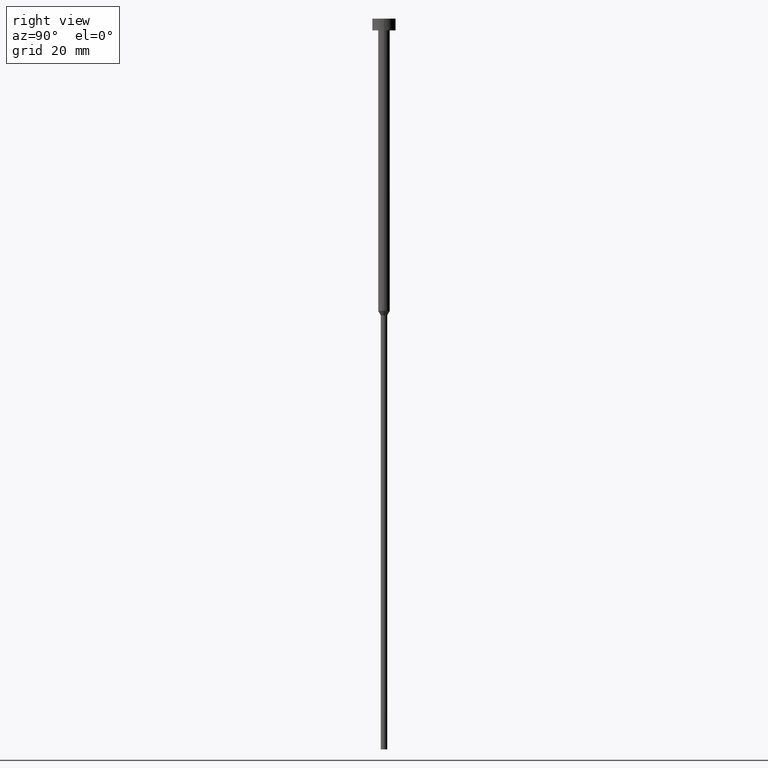
[diagram: clean part render]
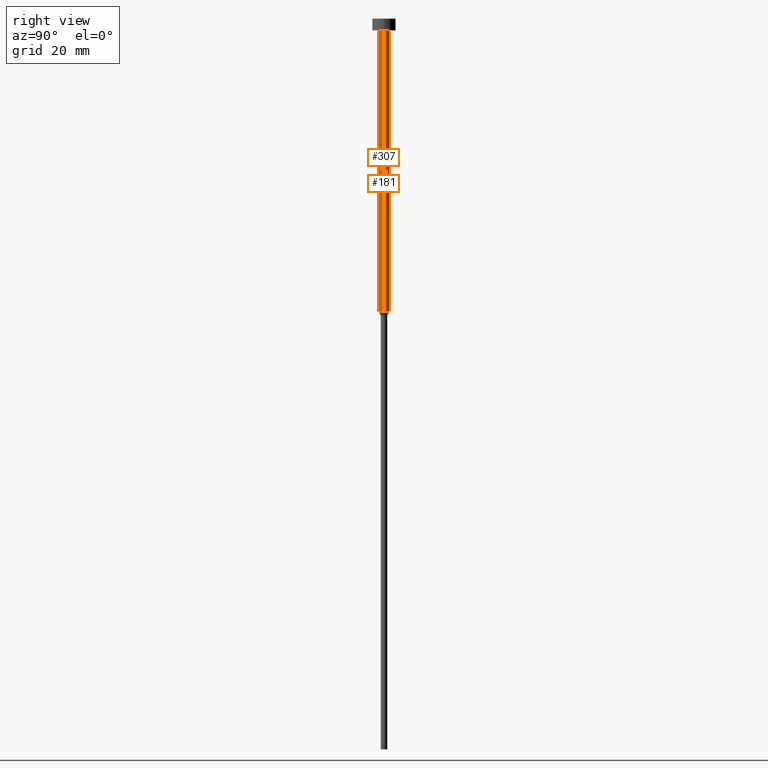
[diagram: same view with one multi-face feature highlighted, each face labeled with its STEP entity id]
A machine part, right view. The highlighted faces form ONE feature: a constant-radius fillet chain: 2 tangent blend faces with common blend radius 1 mm. The faces share edges in the B-rep.
Their STEP definitions:
[1] entity #307 (Cylinder):
#25 = DIRECTION ( 'NONE',  ( 1.000000000000000000, 0.000000000000000000, 0.000000000000000000 ) ) ;
#26 = VERTEX_POINT ( 'NONE', #200 ) ;
#27 = CARTESIAN_POINT ( 'NONE',  ( 0.000000000000000000, 0.000000000000000000, 0.000000000000000000 ) ) ;
#30 = DIRECTION ( 'NONE',  ( -0.000000000000000000, -0.000000000000000000, 1.000000000000000000 ) ) ;
#55 = AXIS2_PLACEMENT_3D ( 'NONE', #27, #244, #218 ) ;
#56 = FACE_OUTER_BOUND ( 'NONE', #223, .T. ) ;
#67 = AXIS2_PLACEMENT_3D ( 'NONE', #188, #327, #302 ) ;
#76 = ORIENTED_EDGE ( 'NONE', *, *, #282, .T. ) ;
#85 = DIRECTION ( 'NONE',  ( -0.000000000000000000, -0.000000000000000000, 1.000000000000000000 ) ) ;
#88 = ORIENTED_EDGE ( 'NONE', *, *, #235, .F. ) ;
#115 = CYLINDRICAL_SURFACE ( 'NONE', #55, 1.000000000000003331 ) ;
#116 = AXIS2_PLACEMENT_3D ( 'NONE', #297, #85, #25 ) ;
#149 = CARTESIAN_POINT ( 'NONE',  ( 1.000000000000003331, 0.000000000000000000, 0.000000000000000000 ) ) ;
#166 = CARTESIAN_POINT ( 'NONE',  ( -1.000000000000003109, 1.224646799147356905E-16, -50.00000000000000000 ) ) ;
#167 = CIRCLE ( 'NONE', #67, 1.000000000000003109 ) ;
#170 = VECTOR ( 'NONE', #30, 1000.000000000000000 ) ;
#188 = CARTESIAN_POINT ( 'NONE',  ( 0.000000000000000000, 0.000000000000000000, -50.00000000000000000 ) ) ;
#190 = VECTOR ( 'NONE', #249, 1000.000000000000000 ) ;
#191 = ORIENTED_EDGE ( 'NONE', *, *, #266, .F. ) ;
#196 = CIRCLE ( 'NONE', #116, 1.000000000000003553 ) ;
#197 = ORIENTED_EDGE ( 'NONE', *, *, #226, .T. ) ;
#198 = CARTESIAN_POINT ( 'NONE',  ( -1.000000000000003553, 1.224646799147357398E-16, -2.000000000000000444 ) ) ;
#200 = CARTESIAN_POINT ( 'NONE',  ( 1.000000000000003553, 0.000000000000000000, -2.000000000000000444 ) ) ;
#218 = DIRECTION ( 'NONE',  ( 1.000000000000000000, 0.000000000000000000, 0.000000000000000000 ) ) ;
#223 = EDGE_LOOP ( 'NONE', ( #88, #197, #76, #191 ) ) ;
#226 = EDGE_CURVE ( 'NONE', #252, #227, #167, .T. ) ;
#227 = VERTEX_POINT ( 'NONE', #299 ) ;
#235 = EDGE_CURVE ( 'NONE', #252, #336, #246, .T. ) ;
#244 = DIRECTION ( 'NONE',  ( -0.000000000000000000, -0.000000000000000000, 1.000000000000000000 ) ) ;
#246 = LINE ( 'NONE', #323, #170 ) ;
#249 = DIRECTION ( 'NONE',  ( -0.000000000000000000, -0.000000000000000000, 1.000000000000000000 ) ) ;
#252 = VERTEX_POINT ( 'NONE', #166 ) ;
#266 = EDGE_CURVE ( 'NONE', #336, #26, #196, .T. ) ;
#270 = LINE ( 'NONE', #149, #190 ) ;
#282 = EDGE_CURVE ( 'NONE', #227, #26, #270, .T. ) ;
#297 = CARTESIAN_POINT ( 'NONE',  ( 0.000000000000000000, 0.000000000000000000, -2.000000000000000444 ) ) ;
#299 = CARTESIAN_POINT ( 'NONE',  ( 1.000000000000003109, 0.000000000000000000, -50.00000000000000000 ) ) ;
#302 = DIRECTION ( 'NONE',  ( 1.000000000000000000, 0.000000000000000000, 0.000000000000000000 ) ) ;
#307 = ADVANCED_FACE ( 'NONE', ( #56 ), #115, .T. ) ;
#323 = CARTESIAN_POINT ( 'NONE',  ( -1.000000000000003331, 1.224646799147357151E-16, 0.000000000000000000 ) ) ;
#327 = DIRECTION ( 'NONE',  ( -0.000000000000000000, -0.000000000000000000, 1.000000000000000000 ) ) ;
#336 = VERTEX_POINT ( 'NONE', #198 ) ;
[2] entity #181 (Cylinder):
#5 = ORIENTED_EDGE ( 'NONE', *, *, #282, .F. ) ;
#20 = CYLINDRICAL_SURFACE ( 'NONE', #151, 1.000000000000003331 ) ;
#26 = VERTEX_POINT ( 'NONE', #200 ) ;
#30 = DIRECTION ( 'NONE',  ( -0.000000000000000000, -0.000000000000000000, 1.000000000000000000 ) ) ;
#32 = DIRECTION ( 'NONE',  ( -0.000000000000000000, -0.000000000000000000, 1.000000000000000000 ) ) ;
#43 = AXIS2_PLACEMENT_3D ( 'NONE', #279, #32, #89 ) ;
#72 = DIRECTION ( 'NONE',  ( -0.000000000000000000, -0.000000000000000000, 1.000000000000000000 ) ) ;
#74 = EDGE_LOOP ( 'NONE', ( #184, #109, #147, #5 ) ) ;
#89 = DIRECTION ( 'NONE',  ( 1.000000000000000000, 0.000000000000000000, 0.000000000000000000 ) ) ;
#99 = CARTESIAN_POINT ( 'NONE',  ( 0.000000000000000000, 0.000000000000000000, 0.000000000000000000 ) ) ;
#109 = ORIENTED_EDGE ( 'NONE', *, *, #235, .T. ) ;
#147 = ORIENTED_EDGE ( 'NONE', *, *, #154, .F. ) ;
#149 = CARTESIAN_POINT ( 'NONE',  ( 1.000000000000003331, 0.000000000000000000, 0.000000000000000000 ) ) ;
#151 = AXIS2_PLACEMENT_3D ( 'NONE', #99, #72, #291 ) ;
#154 = EDGE_CURVE ( 'NONE', #26, #336, #161, .T. ) ;
#161 = CIRCLE ( 'NONE', #339, 1.000000000000003553 ) ;
#166 = CARTESIAN_POINT ( 'NONE',  ( -1.000000000000003109, 1.224646799147356905E-16, -50.00000000000000000 ) ) ;
#170 = VECTOR ( 'NONE', #30, 1000.000000000000000 ) ;
#176 = DIRECTION ( 'NONE',  ( -0.000000000000000000, -0.000000000000000000, 1.000000000000000000 ) ) ;
#181 = ADVANCED_FACE ( 'NONE', ( #229 ), #20, .T. ) ;
#184 = ORIENTED_EDGE ( 'NONE', *, *, #349, .T. ) ;
#190 = VECTOR ( 'NONE', #249, 1000.000000000000000 ) ;
#198 = CARTESIAN_POINT ( 'NONE',  ( -1.000000000000003553, 1.224646799147357398E-16, -2.000000000000000444 ) ) ;
#200 = CARTESIAN_POINT ( 'NONE',  ( 1.000000000000003553, 0.000000000000000000, -2.000000000000000444 ) ) ;
#227 = VERTEX_POINT ( 'NONE', #299 ) ;
#229 = FACE_OUTER_BOUND ( 'NONE', #74, .T. ) ;
#235 = EDGE_CURVE ( 'NONE', #252, #336, #246, .T. ) ;
#246 = LINE ( 'NONE', #323, #170 ) ;
#249 = DIRECTION ( 'NONE',  ( -0.000000000000000000, -0.000000000000000000, 1.000000000000000000 ) ) ;
#252 = VERTEX_POINT ( 'NONE', #166 ) ;
#270 = LINE ( 'NONE', #149, #190 ) ;
#278 = DIRECTION ( 'NONE',  ( 1.000000000000000000, 0.000000000000000000, 0.000000000000000000 ) ) ;
#279 = CARTESIAN_POINT ( 'NONE',  ( 0.000000000000000000, 0.000000000000000000, -50.00000000000000000 ) ) ;
#282 = EDGE_CURVE ( 'NONE', #227, #26, #270, .T. ) ;
#291 = DIRECTION ( 'NONE',  ( 1.000000000000000000, 0.000000000000000000, 0.000000000000000000 ) ) ;
#299 = CARTESIAN_POINT ( 'NONE',  ( 1.000000000000003109, 0.000000000000000000, -50.00000000000000000 ) ) ;
#312 = CARTESIAN_POINT ( 'NONE',  ( 0.000000000000000000, 0.000000000000000000, -2.000000000000000444 ) ) ;
#313 = CIRCLE ( 'NONE', #43, 1.000000000000003109 ) ;
#323 = CARTESIAN_POINT ( 'NONE',  ( -1.000000000000003331, 1.224646799147357151E-16, 0.000000000000000000 ) ) ;
#336 = VERTEX_POINT ( 'NONE', #198 ) ;
#339 = AXIS2_PLACEMENT_3D ( 'NONE', #312, #176, #278 ) ;
#349 = EDGE_CURVE ( 'NONE', #227, #252, #313, .T. ) ;